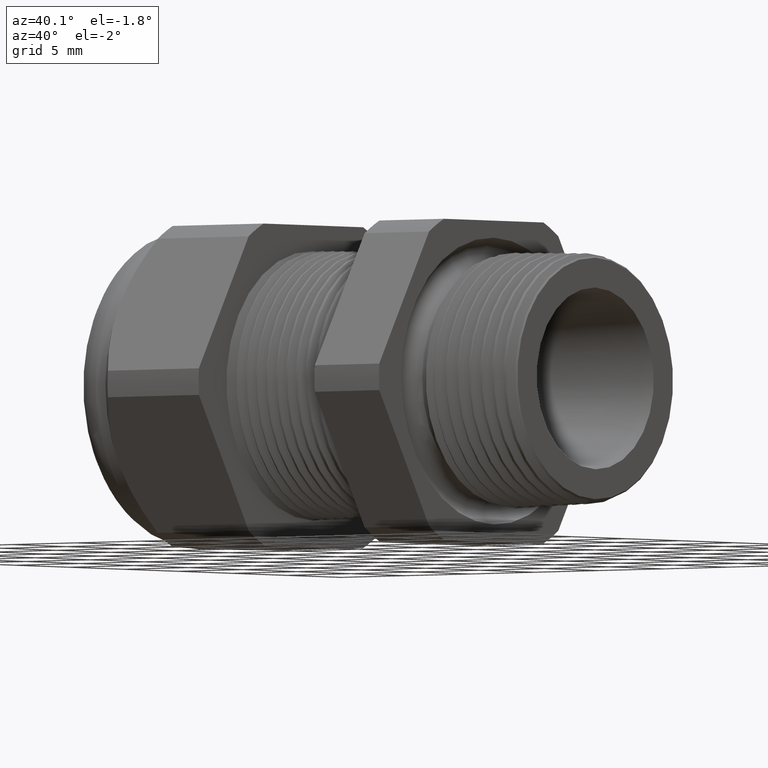
[diagram: clean part render]
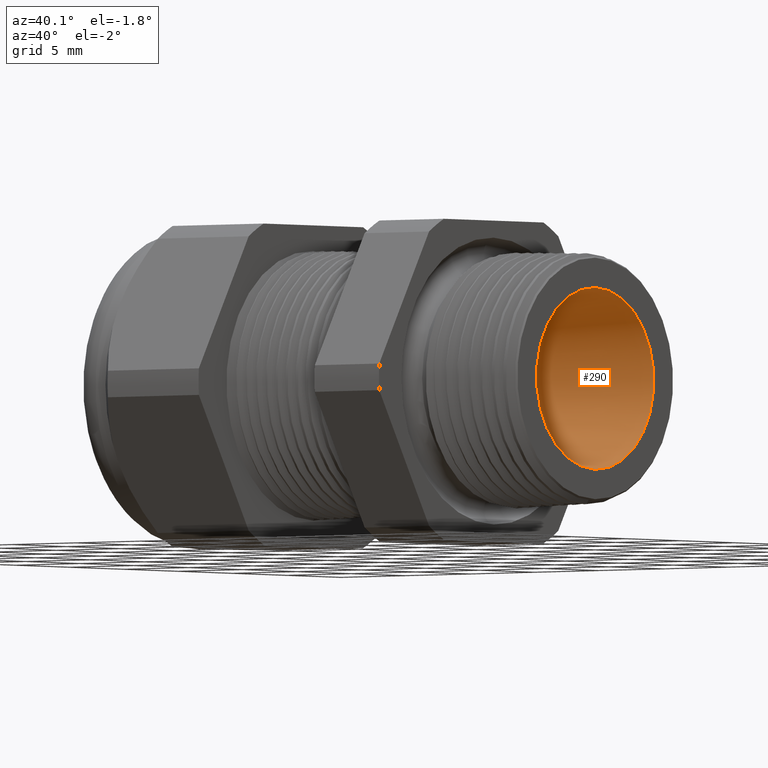
[diagram: same view with one face highlighted and labeled with its STEP entity id]
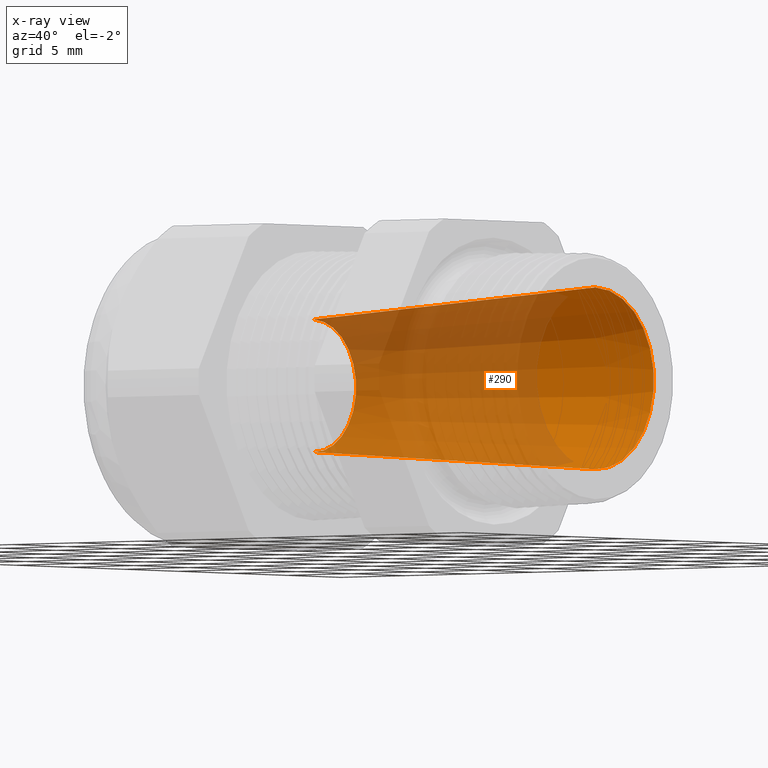
[diagram: x-ray of the same camera — body ghosted, the highlighted face saturated]
A machine part, auxiliary view. The second image highlights one B-rep face of the part: STEP entity #290.
The next image is the same camera in x-ray: the body ghosted, the highlighted face saturated — about 65% of this face is hidden behind the body in this view.
In plain terms, the highlighted conical surface has half-angle 3.818 deg.
Its self-contained STEP definition (entity closure, byte-faithful):
#104 = ORIENTED_EDGE ( 'NONE', *, *, #936, .T. ) ;
#109 = EDGE_CURVE ( 'NONE', #873, #870, #4886, .T. ) ;
#280 = ORIENTED_EDGE ( 'NONE', *, *, #109, .F. ) ;
#283 = ORIENTED_EDGE ( 'NONE', *, *, #930, .F. ) ;
#284 = EDGE_LOOP ( 'NONE', ( #283, #280, #104, #672 ) ) ;
#290 = ADVANCED_FACE ( 'NONE', ( #1090 ), #1089, .F. ) ;
#292 = EDGE_CURVE ( 'NONE', #934, #931, #1148, .T. ) ;
#672 = ORIENTED_EDGE ( 'NONE', *, *, #292, .T. ) ;
#870 = VERTEX_POINT ( 'NONE', #1536 ) ;
#873 = VERTEX_POINT ( 'NONE', #1530 ) ;
#930 = EDGE_CURVE ( 'NONE', #870, #931, #1685, .T. ) ;
#931 = VERTEX_POINT ( 'NONE', #1676 ) ;
#934 = VERTEX_POINT ( 'NONE', #1670 ) ;
#936 = EDGE_CURVE ( 'NONE', #873, #934, #1669, .T. ) ;
#1085 = DIRECTION ( 'NONE',  ( 0.0000000000000000000, 0.0000000000000000000, -1.000000000000000000 ) ) ;
#1086 = DIRECTION ( 'NONE',  ( 1.000000000000000000, 0.0000000000000000000, 0.0000000000000000000 ) ) ;
#1087 = CARTESIAN_POINT ( 'NONE',  ( -0.8608661417322833700, 0.0000000000000000000, 0.0000000000000000000 ) ) ;
#1088 = AXIS2_PLACEMENT_3D ( 'NONE', #1087, #1086, #1085 ) ;
#1089 = CONICAL_SURFACE ( 'NONE', #1088, 0.1550000000000000000, 0.06664489660048481000 ) ;
#1090 = FACE_OUTER_BOUND ( 'NONE', #284, .T. ) ;
#1144 = DIRECTION ( 'NONE',  ( 0.0000000000000000000, 0.0000000000000000000, -1.000000000000000000 ) ) ;
#1145 = DIRECTION ( 'NONE',  ( 1.000000000000000000, 0.0000000000000000000, 0.0000000000000000000 ) ) ;
#1146 = CARTESIAN_POINT ( 'NONE',  ( 4.443791160244338600E-018, 0.0000000000000000000, 0.0000000000000000000 ) ) ;
#1147 = AXIS2_PLACEMENT_3D ( 'NONE', #1146, #1145, #1144 ) ;
#1148 = CIRCLE ( 'NONE', #1147, 0.2124574267310359600 ) ;
#1530 = CARTESIAN_POINT ( 'NONE',  ( -0.8608661417322833700, 0.0000000000000000000, -0.1550000000000000000 ) ) ;
#1536 = CARTESIAN_POINT ( 'NONE',  ( -0.8608661417322833700, 2.250027807345431400E-017, 0.1550000000000000000 ) ) ;
#1666 = DIRECTION ( 'NONE',  ( 0.9977800507276000100, 0.0000000000000000000, -0.06659557320143644200 ) ) ;
#1667 = VECTOR ( 'NONE', #1666, 39.37007874015748100 ) ;
#1668 = CARTESIAN_POINT ( 'NONE',  ( -0.8608661417322833700, 0.0000000000000000000, -0.1550000000000000000 ) ) ;
#1669 = LINE ( 'NONE', #1668, #1667 ) ;
#1670 = CARTESIAN_POINT ( 'NONE',  ( 4.443791160244338600E-018, 0.0000000000000000000, -0.2124574267310359600 ) ) ;
#1676 = CARTESIAN_POINT ( 'NONE',  ( 4.443791160244338600E-018, 2.601853076012465100E-017, 0.2124574267310359600 ) ) ;
#1677 = DIRECTION ( 'NONE',  ( 0.9977800507276000100, 8.155605555852239100E-018, 0.06659557320143644200 ) ) ;
#1678 = VECTOR ( 'NONE', #1677, 39.37007874015748100 ) ;
#1679 = CARTESIAN_POINT ( 'NONE',  ( -0.8608661417322833700, 1.898202538678397300E-017, 0.1550000000000000000 ) ) ;
#1685 = LINE ( 'NONE', #1679, #1678 ) ;
#4886 = CIRCLE ( 'NONE', #4945, 0.1550000000000000000 ) ;
#4942 = DIRECTION ( 'NONE',  ( 0.0000000000000000000, 0.0000000000000000000, -1.000000000000000000 ) ) ;
#4943 = DIRECTION ( 'NONE',  ( 1.000000000000000000, 0.0000000000000000000, 0.0000000000000000000 ) ) ;
#4944 = CARTESIAN_POINT ( 'NONE',  ( -0.8608661417322833700, 0.0000000000000000000, 0.0000000000000000000 ) ) ;
#4945 = AXIS2_PLACEMENT_3D ( 'NONE', #4944, #4943, #4942 ) ;